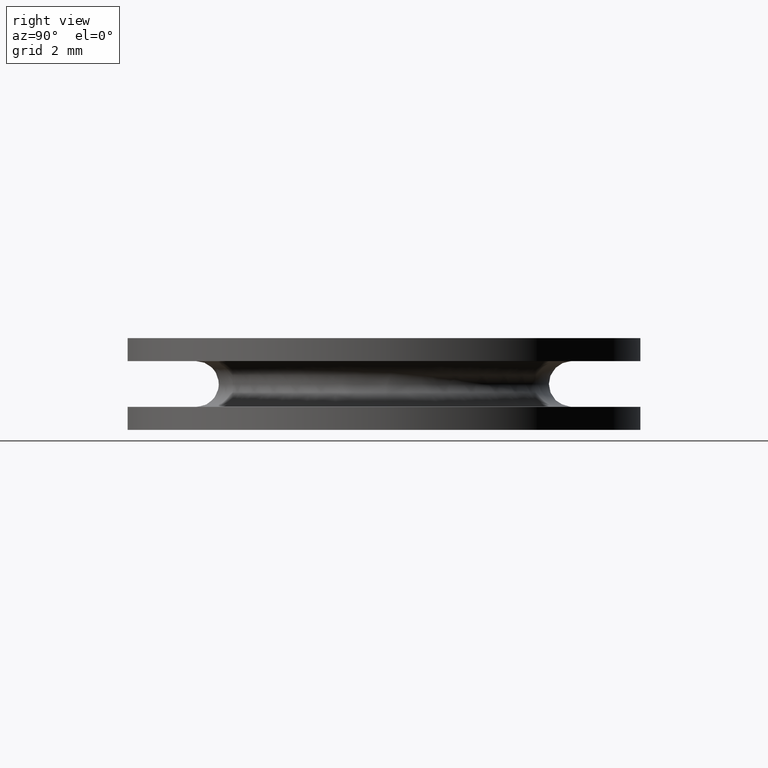
[diagram: clean part render]
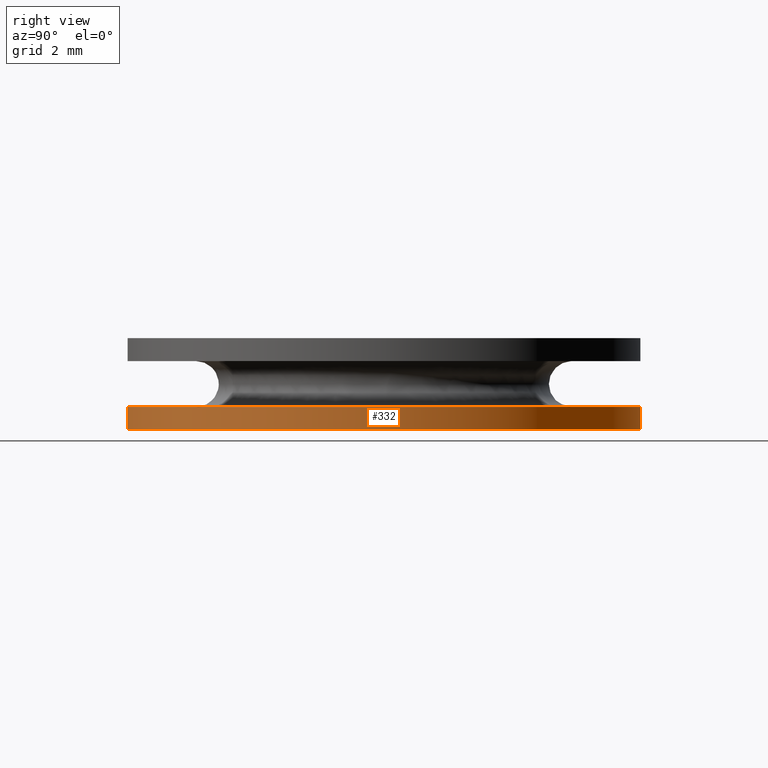
[diagram: same view with one face highlighted and labeled with its STEP entity id]
A machine part, right view. The second image highlights one B-rep face of the part: STEP entity #332.
In plain terms, the highlighted face is a freeform B-spline surface patch.
Its self-contained STEP definition (entity closure, byte-faithful):
#230=CARTESIAN_POINT('',(-0.660991714077847,5.560853347636532,0.512500000000000));
#231=CARTESIAN_POINT('',(-0.501842480372675,5.579770646512191,0.512500000000000));
#232=CARTESIAN_POINT('',(-0.341871821395199,5.589554871162453,0.512500000000000));
#233=CARTESIAN_POINT('',(5.247683049767254,5.931426692557652,0.512500000000000));
#234=CARTESIAN_POINT('',(5.589554871162453,0.341871821395199,0.512500000000000));
#235=CARTESIAN_POINT('',(5.931426692557652,-5.247683049767254,0.512500000000000));
#236=CARTESIAN_POINT('',(0.341871821395199,-5.589554871162453,0.512500000000000));
#237=CARTESIAN_POINT('',(-0.660991714077847,5.560853347636532,-0.012812500000000));
#238=CARTESIAN_POINT('',(-0.501842480372675,5.579770646512191,-0.012812500000000));
#239=CARTESIAN_POINT('',(-0.341871821395199,5.589554871162453,-0.012812500000000));
#240=CARTESIAN_POINT('',(5.247683049767254,5.931426692557652,-0.012812500000000));
#241=CARTESIAN_POINT('',(5.589554871162453,0.341871821395199,-0.012812500000000));
#242=CARTESIAN_POINT('',(5.931426692557652,-5.247683049767254,-0.012812500000000));
#243=CARTESIAN_POINT('',(0.341871821395199,-5.589554871162453,-0.012812500000000));
#251=(BOUNDED_SURFACE()B_SPLINE_SURFACE(2,1,((#230,#237),(#231,#238),(#232,#239),(#233,#240),(#234,#241),(#235,#242),(#236,#243)),.UNSPECIFIED.,.F.,.F.,.U.)B_SPLINE_SURFACE_WITH_KNOTS((3,2,2,3),(2,2),(0.0,0.371135351886293,9.649519149043620,18.927902946200948),(0.0,1.0),.UNSPECIFIED.)GEOMETRIC_REPRESENTATION_ITEM()RATIONAL_B_SPLINE_SURFACE(((0.977505800795127,0.977505800795127),(0.988284271247462,0.988284271247462),(1.0,1.0),(0.707106781186548,0.707106781186548),(1.0,1.0),(0.707106781186548,0.707106781186548),(1.0,1.0)))REPRESENTATION_ITEM('')SURFACE());
#252=CARTESIAN_POINT('',(-0.660988173988058,5.560853768427579,0.499999999999939));
#253=VERTEX_POINT('',#252);
#254=CARTESIAN_POINT('',(5.600000000000000,0.0,0.500000000000000));
#255=VERTEX_POINT('',#254);
#256=CARTESIAN_POINT('',(-0.660988173988058,5.560853768427579,0.499999999999939));
#257=CARTESIAN_POINT('',(-0.331653281293282,5.600000000000001,0.500000000000000));
#258=CARTESIAN_POINT('',(0.0,5.600000000000000,0.500000000000000));
#259=CARTESIAN_POINT('',(5.599999999999999,5.599999999999999,0.500000000000000));
#260=CARTESIAN_POINT('',(5.600000000000000,0.0,0.500000000000000));
#268=(BOUNDED_CURVE()B_SPLINE_CURVE(2,(#256,#257,#258,#259,#260),.UNSPECIFIED.,.F.,.U.)B_SPLINE_CURVE_WITH_KNOTS((3,2,3),(0.229562581104653,0.250000000000000,0.500000000000000),.UNSPECIFIED.)CURVE()GEOMETRIC_REPRESENTATION_ITEM()RATIONAL_B_SPLINE_CURVE((0.956026965066855,0.976056074382012,1.0,0.707106781186547,1.0))REPRESENTATION_ITEM(''));
#269=EDGE_CURVE('',#253,#255,#268,.T.);
#270=ORIENTED_EDGE('',*,*,#269,.T.);
#271=CARTESIAN_POINT('',(0.341869821769910,-5.589554993464057,0.499999999999960));
#272=VERTEX_POINT('',#271);
#273=CARTESIAN_POINT('',(5.600000000000000,0.0,0.500000000000000));
#274=CARTESIAN_POINT('',(5.599999999999999,-5.267955862768601,0.500000000000000));
#275=CARTESIAN_POINT('',(0.341869821769910,-5.589554993464057,0.499999999999960));
#283=(BOUNDED_CURVE()B_SPLINE_CURVE(2,(#273,#274,#275),.UNSPECIFIED.,.F.,.U.)B_SPLINE_CURVE_WITH_KNOTS((3,3),(0.500000000000000,0.739333023969413),.UNSPECIFIED.)CURVE()GEOMETRIC_REPRESENTATION_ITEM()RATIONAL_B_SPLINE_CURVE((1.0,0.719603920964966,0.976072173966902))REPRESENTATION_ITEM(''));
#284=EDGE_CURVE('',#255,#272,#283,.T.);
#285=ORIENTED_EDGE('',*,*,#284,.T.);
#286=CARTESIAN_POINT('',(0.341869845843835,-5.589554991991651,2.602085E-018));
#287=VERTEX_POINT('',#286);
#288=CARTESIAN_POINT('',(0.341869821769910,-5.589554993464057,0.499999999999960));
#289=CARTESIAN_POINT('',(0.341869845843835,-5.589554991991651,2.602085E-018));
#290=QUASI_UNIFORM_CURVE('',1,(#288,#289),.UNSPECIFIED.,.F.,.U.);
#291=EDGE_CURVE('',#272,#287,#290,.T.);
#292=ORIENTED_EDGE('',*,*,#291,.T.);
#293=CARTESIAN_POINT('',(5.600000000000000,0.0,0.0));
#294=VERTEX_POINT('',#293);
#295=CARTESIAN_POINT('',(5.600000000000000,0.0,0.0));
#296=CARTESIAN_POINT('',(5.600000000000000,-5.267955840037390,0.0));
#297=CARTESIAN_POINT('',(0.341869845843835,-5.589554991991651,2.602085E-018));
#305=(BOUNDED_CURVE()B_SPLINE_CURVE(2,(#295,#296,#297),.UNSPECIFIED.,.F.,.U.)B_SPLINE_CURVE_WITH_KNOTS((3,3),(0.500000000000000,0.739333023226263),.UNSPECIFIED.)CURVE()GEOMETRIC_REPRESENTATION_ITEM()RATIONAL_B_SPLINE_CURVE((1.0,0.719603921835620,0.976072172374189))REPRESENTATION_ITEM(''));
#306=EDGE_CURVE('',#294,#287,#305,.T.);
#307=ORIENTED_EDGE('',*,*,#306,.F.);
#308=CARTESIAN_POINT('',(-0.660988216627040,5.560853763359345,-2.573232E-017));
#309=VERTEX_POINT('',#308);
#310=CARTESIAN_POINT('',(-0.660988216627040,5.560853763359345,-2.573232E-017));
#311=CARTESIAN_POINT('',(-0.331653302838156,5.600000000000000,0.0));
#312=CARTESIAN_POINT('',(0.0,5.600000000000000,0.0));
#313=CARTESIAN_POINT('',(5.599999999999999,5.599999999999999,0.0));
#314=CARTESIAN_POINT('',(5.600000000000000,0.0,0.0));
#322=(BOUNDED_CURVE()B_SPLINE_CURVE(2,(#310,#311,#312,#313,#314),.UNSPECIFIED.,.F.,.U.)B_SPLINE_CURVE_WITH_KNOTS((3,2,3),(0.229562579808786,0.250000000000000,0.500000000000000),.UNSPECIFIED.)CURVE()GEOMETRIC_REPRESENTATION_ITEM()RATIONAL_B_SPLINE_CURVE((0.956026962526900,0.976056072863809,1.0,0.707106781186547,1.0))REPRESENTATION_ITEM(''));
#323=EDGE_CURVE('',#309,#294,#322,.T.);
#324=ORIENTED_EDGE('',*,*,#323,.F.);
#325=CARTESIAN_POINT('',(-0.660988173988058,5.560853768427579,0.499999999999939));
#326=CARTESIAN_POINT('',(-0.660988216627040,5.560853763359345,-2.573232E-017));
#327=QUASI_UNIFORM_CURVE('',1,(#325,#326),.UNSPECIFIED.,.F.,.U.);
#328=EDGE_CURVE('',#253,#309,#327,.T.);
#329=ORIENTED_EDGE('',*,*,#328,.F.);
#330=EDGE_LOOP('',(#270,#285,#292,#307,#324,#329));
#331=FACE_OUTER_BOUND('',#330,.T.);
#332=ADVANCED_FACE('',(#331),#251,.T.);